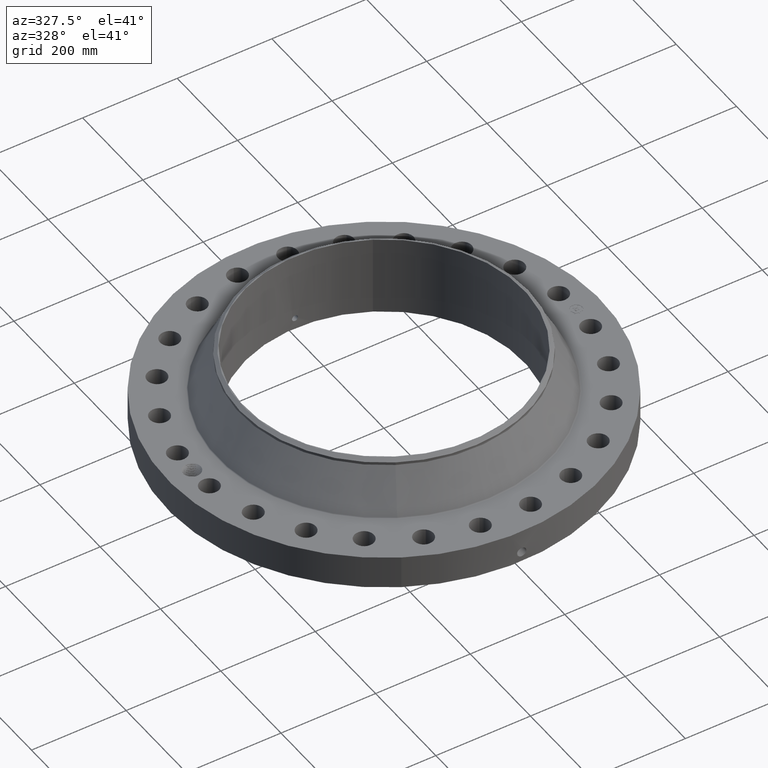
[diagram: clean part render]
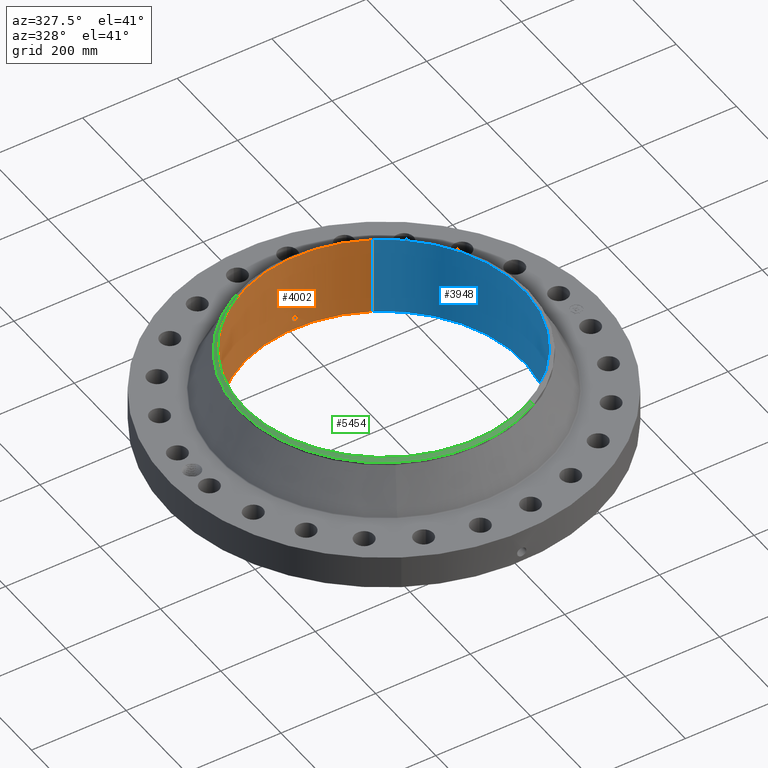
[diagram: same view with three faces highlighted in distinct colors, each labeled with its STEP entity id]
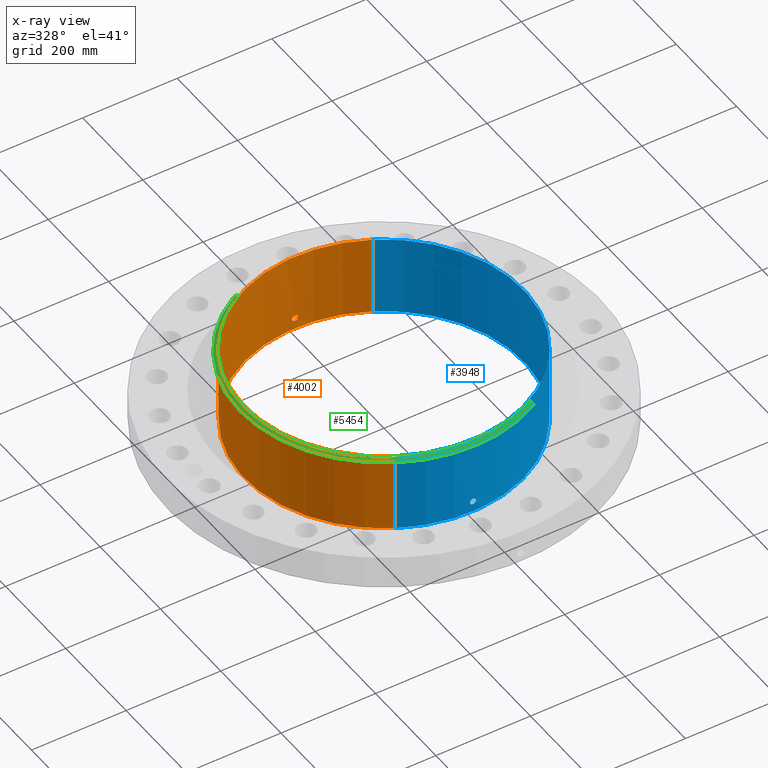
[diagram: x-ray of the same camera — body ghosted, the three highlighted faces saturated]
A machine part, auxiliary view with three faces highlighted in distinct colors.
The next image is the same camera in x-ray (body ghosted, the three faces saturated) — at least one of them is partly hidden behind the body in this view.
Their STEP definitions:

[orange] entity #4002 — the highlighted cylindrical surface (partial cylindrical patch) has radius 295.275 mm, axis along (0, 0, -1).
#3145=AXIS2_PLACEMENT_3D('Circle Axis2P3D',#3143,#3144,$) ;
#3879=AXIS2_PLACEMENT_3D('Cylinder Axis2P3D',#3876,#3877,#3878) ;
#3951=AXIS2_PLACEMENT_3D('Circle Axis2P3D',#3949,#3950,$) ;
#3138=CARTESIAN_POINT('Vertex',(5.5733218863,10.201897282,-7.38516859215E-014)) ;
#3140=CARTESIAN_POINT('Vertex',(-5.5733218863,-10.201897282,-7.38516859215E-014)) ;
#3143=CARTESIAN_POINT('Axis2P3D Location',(0.,0.,0.)) ;
#3876=CARTESIAN_POINT('Axis2P3D Location',(0.,0.,3.34000000001)) ;
#3885=CARTESIAN_POINT('Vertex',(5.5733218863,10.201897282,6.68000000003)) ;
#3887=CARTESIAN_POINT('Vertex',(-5.5733218863,-10.201897282,6.68000000003)) ;
#3890=CARTESIAN_POINT('Line Origine',(5.5733218863,10.201897282,3.34000000001)) ;
#3895=CARTESIAN_POINT('Line Origine',(-5.5733218863,-10.201897282,3.34000000001)) ;
#3949=CARTESIAN_POINT('Axis2P3D Location',(0.,0.,6.68000000003)) ;
#3961=CARTESIAN_POINT('Control Point',(0.219395640473,11.6229295169,1.05985638466)) ;
#3962=CARTESIAN_POINT('Control Point',(0.194442690224,11.6234005314,1.10553245371)) ;
#3963=CARTESIAN_POINT('Control Point',(0.157603809336,11.6240289186,1.14471350048)) ;
#3964=CARTESIAN_POINT('Control Point',(0.111104237674,11.624640089,1.17324467079)) ;
#3965=CARTESIAN_POINT('Control Point',(0.0336681244738,11.6251263373,1.19588334378)) ;
#3966=CARTESIAN_POINT('Control Point',(-0.0446771706209,11.6249582664,1.18805553725)) ;
#3967=CARTESIAN_POINT('Control Point',(-0.070308650011,11.624827795,1.18204182908)) ;
#3968=CARTESIAN_POINT('Control Point',(-0.143966920729,11.6242512714,1.15420586264)) ;
#3969=CARTESIAN_POINT('Control Point',(-0.203255914399,11.6233103135,1.0994840991)) ;
#3970=CARTESIAN_POINT('Control Point',(-0.23221869848,11.6226932693,1.05323980766)) ;
#3971=CARTESIAN_POINT('Control Point',(-0.255842048657,11.6221861779,0.975095075017)) ;
#3972=CARTESIAN_POINT('Control Point',(-0.248280051566,11.622348369,0.895735509005)) ;
#3973=CARTESIAN_POINT('Control Point',(-0.242046339881,11.6224840063,0.869177390131)) ;
#3974=CARTESIAN_POINT('Control Point',(-0.23231379708,11.6226856724,0.843790142408)) ;
#3975=CARTESIAN_POINT('Control Point',(-0.219395640473,11.6229295169,0.820143615352)) ;
#3976=CARTESIAN_POINT('Vertex',(0.219395640473,11.6229295169,1.05985638466)) ;
#3978=CARTESIAN_POINT('Vertex',(-0.219395640473,11.6229295169,0.820143615352)) ;
#3982=CARTESIAN_POINT('Control Point',(-0.219395640473,11.6229295169,0.820143615352)) ;
#3983=CARTESIAN_POINT('Control Point',(-0.194442690218,11.6234005314,0.77446754629)) ;
#3984=CARTESIAN_POINT('Control Point',(-0.157603809319,11.6240289186,0.73528649951)) ;
#3985=CARTESIAN_POINT('Control Point',(-0.111104237694,11.624640089,0.706755329219)) ;
#3986=CARTESIAN_POINT('Control Point',(-0.0336681244899,11.6251263373,0.684116656225)) ;
#3987=CARTESIAN_POINT('Control Point',(0.0446771706078,11.6249582664,0.691944462758)) ;
#3988=CARTESIAN_POINT('Control Point',(0.070308650032,11.624827795,0.69795817093)) ;
#3989=CARTESIAN_POINT('Control Point',(0.143966920754,11.6242512714,0.725794137385)) ;
#3990=CARTESIAN_POINT('Control Point',(0.203255914426,11.6233103135,0.78051590093)) ;
#3991=CARTESIAN_POINT('Control Point',(0.232218698473,11.6226932693,0.826760192318)) ;
#3992=CARTESIAN_POINT('Control Point',(0.25584204863,11.6221861779,0.904904924883)) ;
#3993=CARTESIAN_POINT('Control Point',(0.248280051583,11.622348369,0.984264490811)) ;
#3994=CARTESIAN_POINT('Control Point',(0.24204633981,11.6224840063,1.01082261006)) ;
#3995=CARTESIAN_POINT('Control Point',(0.232313797033,11.6226856724,1.03620985769)) ;
#3996=CARTESIAN_POINT('Control Point',(0.219395640473,11.6229295169,1.05985638466)) ;
#3144=DIRECTION('Axis2P3D Direction',(0.,0.,-0.0393700787402)) ;
#3877=DIRECTION('Axis2P3D Direction',(0.,0.,-0.0393700787402)) ;
#3878=DIRECTION('Axis2P3D XDirection',(-0.0188750212049,-0.0345504945626,0.)) ;
#3891=DIRECTION('Vector Direction',(0.,0.,-0.0393700787402)) ;
#3896=DIRECTION('Vector Direction',(0.,0.,-0.0393700787402)) ;
#3950=DIRECTION('Axis2P3D Direction',(0.,0.,-0.0393700787402)) ;
#3892=VECTOR('Line Direction',#3891,0.0393700787402) ;
#3897=VECTOR('Line Direction',#3896,0.0393700787402) ;
#3955=ORIENTED_EDGE('',*,*,#3953,.F.) ;
#3956=ORIENTED_EDGE('',*,*,#3899,.T.) ;
#3957=ORIENTED_EDGE('',*,*,#3147,.T.) ;
#3958=ORIENTED_EDGE('',*,*,#3894,.F.) ;
#3999=ORIENTED_EDGE('',*,*,#3980,.F.) ;
#4000=ORIENTED_EDGE('',*,*,#3997,.F.) ;
#4001=FACE_BOUND('',#3998,.T.) ;
#4002=ADVANCED_FACE('PartBody',(#3959,#4001),#3880,.F.) ;
#3960=B_SPLINE_CURVE_WITH_KNOTS('',5,(#3961,#3962,#3963,#3964,#3965,#3966,#3967,#3968,#3969,#3970,#3971,#3972,#3973,#3974,#3975),.UNSPECIFIED.,.F.,.U.,(6,3,3,3,6),(0.,9.34839894262,14.0230211608,23.3730687652,28.2127402411),.UNSPECIFIED.) ;
#3981=B_SPLINE_CURVE_WITH_KNOTS('',5,(#3982,#3983,#3984,#3985,#3986,#3987,#3988,#3989,#3990,#3991,#3992,#3993,#3994,#3995,#3996),.UNSPECIFIED.,.F.,.U.,(6,3,3,3,6),(0.,9.34839894479,14.0230211614,23.3730687686,28.212740227),.UNSPECIFIED.) ;
#3146=CIRCLE('generated circle',#3145,11.625) ;
#3952=CIRCLE('generated circle',#3951,11.625) ;
#3880=CYLINDRICAL_SURFACE('generated cylinder',#3879,11.625) ;
#3147=EDGE_CURVE('',#3141,#3139,#3146,.T.) ;
#3894=EDGE_CURVE('',#3886,#3139,#3893,.T.) ;
#3899=EDGE_CURVE('',#3888,#3141,#3898,.T.) ;
#3953=EDGE_CURVE('',#3888,#3886,#3952,.T.) ;
#3980=EDGE_CURVE('',#3977,#3979,#3960,.T.) ;
#3997=EDGE_CURVE('',#3979,#3977,#3981,.T.) ;
#3954=EDGE_LOOP('',(#3955,#3956,#3957,#3958)) ;
#3998=EDGE_LOOP('',(#3999,#4000)) ;
#3959=FACE_OUTER_BOUND('',#3954,.T.) ;
#3893=LINE('Line',#3890,#3892) ;
#3898=LINE('Line',#3895,#3897) ;
#3139=VERTEX_POINT('',#3138) ;
#3141=VERTEX_POINT('',#3140) ;
#3886=VERTEX_POINT('',#3885) ;
#3888=VERTEX_POINT('',#3887) ;
#3977=VERTEX_POINT('',#3976) ;
#3979=VERTEX_POINT('',#3978) ;

[blue] entity #3948 — the highlighted cylindrical surface (partial cylindrical patch) has radius 295.275 mm, axis along (0, 0, -1).
#3136=AXIS2_PLACEMENT_3D('Circle Axis2P3D',#3134,#3135,$) ;
#3879=AXIS2_PLACEMENT_3D('Cylinder Axis2P3D',#3876,#3877,#3878) ;
#3883=AXIS2_PLACEMENT_3D('Circle Axis2P3D',#3881,#3882,$) ;
#3134=CARTESIAN_POINT('Axis2P3D Location',(0.,0.,0.)) ;
#3138=CARTESIAN_POINT('Vertex',(5.5733218863,10.201897282,-7.38516859215E-014)) ;
#3140=CARTESIAN_POINT('Vertex',(-5.5733218863,-10.201897282,-7.38516859215E-014)) ;
#3876=CARTESIAN_POINT('Axis2P3D Location',(0.,0.,3.34000000001)) ;
#3881=CARTESIAN_POINT('Axis2P3D Location',(0.,0.,6.68000000003)) ;
#3885=CARTESIAN_POINT('Vertex',(5.5733218863,10.201897282,6.68000000003)) ;
#3887=CARTESIAN_POINT('Vertex',(-5.5733218863,-10.201897282,6.68000000003)) ;
#3890=CARTESIAN_POINT('Line Origine',(5.5733218863,10.201897282,3.34000000001)) ;
#3895=CARTESIAN_POINT('Line Origine',(-5.5733218863,-10.201897282,3.34000000001)) ;
#3907=CARTESIAN_POINT('Control Point',(0.219395640473,-11.6229295169,0.820143615352)) ;
#3908=CARTESIAN_POINT('Control Point',(0.194442690208,-11.6234005314,0.77446754627)) ;
#3909=CARTESIAN_POINT('Control Point',(0.157603809287,-11.6240289186,0.735286499476)) ;
#3910=CARTESIAN_POINT('Control Point',(0.111104237735,-11.624640089,0.70675532923)) ;
#3911=CARTESIAN_POINT('Control Point',(0.0336681245101,-11.6251263373,0.684116656223)) ;
#3912=CARTESIAN_POINT('Control Point',(-0.0446771706087,-11.6249582664,0.691944462758)) ;
#3913=CARTESIAN_POINT('Control Point',(-0.0703086500379,-11.624827795,0.697958170932)) ;
#3914=CARTESIAN_POINT('Control Point',(-0.143966920625,-11.6242512714,0.725794137338)) ;
#3915=CARTESIAN_POINT('Control Point',(-0.203255914213,-11.6233103135,0.780515900736)) ;
#3916=CARTESIAN_POINT('Control Point',(-0.232218698559,-11.6226932693,0.826760192601)) ;
#3917=CARTESIAN_POINT('Control Point',(-0.255842048639,-11.6221861779,0.9049049251)) ;
#3918=CARTESIAN_POINT('Control Point',(-0.248280051569,-11.622348369,0.984264490959)) ;
#3919=CARTESIAN_POINT('Control Point',(-0.242046339862,-11.6224840063,1.01082260992)) ;
#3920=CARTESIAN_POINT('Control Point',(-0.232313797068,-11.6226856724,1.03620985762)) ;
#3921=CARTESIAN_POINT('Control Point',(-0.219395640473,-11.6229295169,1.05985638466)) ;
#3922=CARTESIAN_POINT('Vertex',(0.219395640473,-11.6229295169,0.820143615352)) ;
#3924=CARTESIAN_POINT('Vertex',(-0.219395640473,-11.6229295169,1.05985638466)) ;
#3928=CARTESIAN_POINT('Control Point',(-0.219395640473,-11.6229295169,1.05985638466)) ;
#3929=CARTESIAN_POINT('Control Point',(-0.194442690217,-11.6234005314,1.10553245372)) ;
#3930=CARTESIAN_POINT('Control Point',(-0.157603809315,-11.6240289186,1.1447135005)) ;
#3931=CARTESIAN_POINT('Control Point',(-0.111104237707,-11.624640089,1.17324467078)) ;
#3932=CARTESIAN_POINT('Control Point',(-0.0336681244976,-11.6251263373,1.19588334378)) ;
#3933=CARTESIAN_POINT('Control Point',(0.044677170607,-11.6249582664,1.18805553725)) ;
#3934=CARTESIAN_POINT('Control Point',(0.0703086500152,-11.624827795,1.18204182908)) ;
#3935=CARTESIAN_POINT('Control Point',(0.143966920726,-11.6242512714,1.15420586264)) ;
#3936=CARTESIAN_POINT('Control Point',(0.203255914394,-11.6233103135,1.09948409911)) ;
#3937=CARTESIAN_POINT('Control Point',(0.232218698479,-11.6226932693,1.05323980766)) ;
#3938=CARTESIAN_POINT('Control Point',(0.255842048642,-11.6221861779,0.975095075069)) ;
#3939=CARTESIAN_POINT('Control Point',(0.248280051576,-11.622348369,0.895735509108)) ;
#3940=CARTESIAN_POINT('Control Point',(0.242046339846,-11.6224840063,0.869177390039)) ;
#3941=CARTESIAN_POINT('Control Point',(0.232313797057,-11.6226856724,0.843790142365)) ;
#3942=CARTESIAN_POINT('Control Point',(0.219395640473,-11.6229295169,0.820143615352)) ;
#3135=DIRECTION('Axis2P3D Direction',(0.,0.,-0.0393700787402)) ;
#3877=DIRECTION('Axis2P3D Direction',(0.,0.,-0.0393700787402)) ;
#3878=DIRECTION('Axis2P3D XDirection',(-0.0188750212049,-0.0345504945626,0.)) ;
#3882=DIRECTION('Axis2P3D Direction',(0.,0.,-0.0393700787402)) ;
#3891=DIRECTION('Vector Direction',(0.,0.,-0.0393700787402)) ;
#3896=DIRECTION('Vector Direction',(0.,0.,-0.0393700787402)) ;
#3892=VECTOR('Line Direction',#3891,0.0393700787402) ;
#3897=VECTOR('Line Direction',#3896,0.0393700787402) ;
#3901=ORIENTED_EDGE('',*,*,#3889,.F.) ;
#3902=ORIENTED_EDGE('',*,*,#3894,.T.) ;
#3903=ORIENTED_EDGE('',*,*,#3142,.T.) ;
#3904=ORIENTED_EDGE('',*,*,#3899,.F.) ;
#3945=ORIENTED_EDGE('',*,*,#3926,.F.) ;
#3946=ORIENTED_EDGE('',*,*,#3943,.F.) ;
#3947=FACE_BOUND('',#3944,.T.) ;
#3948=ADVANCED_FACE('PartBody',(#3905,#3947),#3880,.F.) ;
#3906=B_SPLINE_CURVE_WITH_KNOTS('',5,(#3907,#3908,#3909,#3910,#3911,#3912,#3913,#3914,#3915,#3916,#3917,#3918,#3919,#3920,#3921),.UNSPECIFIED.,.F.,.U.,(6,3,3,3,6),(0.,9.34839894884,14.0230211652,23.373068747,28.2127402183),.UNSPECIFIED.) ;
#3927=B_SPLINE_CURVE_WITH_KNOTS('',5,(#3928,#3929,#3930,#3931,#3932,#3933,#3934,#3935,#3936,#3937,#3938,#3939,#3940,#3941,#3942),.UNSPECIFIED.,.F.,.U.,(6,3,3,3,6),(0.,9.34839894521,14.0230211626,23.3730687666,28.2127402338),.UNSPECIFIED.) ;
#3137=CIRCLE('generated circle',#3136,11.625) ;
#3884=CIRCLE('generated circle',#3883,11.625) ;
#3880=CYLINDRICAL_SURFACE('generated cylinder',#3879,11.625) ;
#3142=EDGE_CURVE('',#3139,#3141,#3137,.T.) ;
#3889=EDGE_CURVE('',#3886,#3888,#3884,.T.) ;
#3894=EDGE_CURVE('',#3886,#3139,#3893,.T.) ;
#3899=EDGE_CURVE('',#3888,#3141,#3898,.T.) ;
#3926=EDGE_CURVE('',#3923,#3925,#3906,.T.) ;
#3943=EDGE_CURVE('',#3925,#3923,#3927,.T.) ;
#3900=EDGE_LOOP('',(#3901,#3902,#3903,#3904)) ;
#3944=EDGE_LOOP('',(#3945,#3946)) ;
#3905=FACE_OUTER_BOUND('',#3900,.T.) ;
#3893=LINE('Line',#3890,#3892) ;
#3898=LINE('Line',#3895,#3897) ;
#3139=VERTEX_POINT('',#3138) ;
#3141=VERTEX_POINT('',#3140) ;
#3886=VERTEX_POINT('',#3885) ;
#3888=VERTEX_POINT('',#3887) ;
#3923=VERTEX_POINT('',#3922) ;
#3925=VERTEX_POINT('',#3924) ;

[green] entity #5454 — the highlighted conical surface has half-angle 52.5 deg.
#4259=AXIS2_PLACEMENT_3D('Circle Axis2P3D',#4257,#4258,$) ;
#4272=AXIS2_PLACEMENT_3D('Circle Axis2P3D',#4270,#4271,$) ;
#5074=AXIS2_PLACEMENT_3D('Circle Axis2P3D',#5072,#5073,$) ;
#5427=AXIS2_PLACEMENT_3D('Cone Axis2P3D',#5424,#5425,#5426) ;
#4240=CARTESIAN_POINT('Vertex',(-5.75310646327,-10.5309907427,6.45267182741)) ;
#4254=CARTESIAN_POINT('Vertex',(5.75310646327,-10.5309907427,6.45267182741)) ;
#4257=CARTESIAN_POINT('Axis2P3D Location',(0.,0.,6.45267182741)) ;
#4270=CARTESIAN_POINT('Axis2P3D Location',(0.,0.,6.45267182741)) ;
#4274=CARTESIAN_POINT('Vertex',(-5.75310646327,10.5309907427,6.45267182741)) ;
#5067=CARTESIAN_POINT('Vertex',(5.61107192871,-10.2709982711,6.68000000003)) ;
#5069=CARTESIAN_POINT('Vertex',(-5.61107192871,10.2709982711,6.68000000003)) ;
#5072=CARTESIAN_POINT('Axis2P3D Location',(0.,0.,6.68000000003)) ;
#5424=CARTESIAN_POINT('Axis2P3D Location',(0.,0.,6.68000000003)) ;
#5429=CARTESIAN_POINT('Line Origine',(-5.68208919599,10.4009945069,6.56633591372)) ;
#5434=CARTESIAN_POINT('Line Origine',(5.68208919599,-10.4009945069,6.56633591372)) ;
#4258=DIRECTION('Axis2P3D Direction',(0.,0.,-0.0393700787402)) ;
#4271=DIRECTION('Axis2P3D Direction',(0.,0.,-0.0393700787402)) ;
#5073=DIRECTION('Axis2P3D Direction',(0.,0.,-0.0393700787402)) ;
#5425=DIRECTION('Axis2P3D Direction',(-0.,-0.,-0.0393700787402)) ;
#5426=DIRECTION('Axis2P3D XDirection',(0.0188750212049,-0.0345504945626,0.)) ;
#5430=DIRECTION('Vector Direction',(-0.014974561121,0.02741075027,-0.023966985394)) ;
#5435=DIRECTION('Vector Direction',(0.014974561121,-0.02741075027,-0.023966985394)) ;
#5431=VECTOR('Line Direction',#5430,0.0393700787402) ;
#5436=VECTOR('Line Direction',#5435,0.0393700787402) ;
#5448=ORIENTED_EDGE('',*,*,#5438,.F.) ;
#5449=ORIENTED_EDGE('',*,*,#5076,.F.) ;
#5450=ORIENTED_EDGE('',*,*,#5433,.T.) ;
#5451=ORIENTED_EDGE('',*,*,#4276,.T.) ;
#5452=ORIENTED_EDGE('',*,*,#4261,.F.) ;
#5454=ADVANCED_FACE('PartBody',(#5453),#5428,.T.) ;
#4260=CIRCLE('generated circle',#4259,12.) ;
#4273=CIRCLE('generated circle',#4272,12.) ;
#5075=CIRCLE('generated circle',#5074,11.7037401575) ;
#5428=CONICAL_SURFACE('Cone',#5427,11.7037401575,0.916297857297) ;
#4261=EDGE_CURVE('',#4255,#4241,#4260,.T.) ;
#4276=EDGE_CURVE('',#4275,#4241,#4273,.F.) ;
#5076=EDGE_CURVE('',#5070,#5068,#5075,.F.) ;
#5433=EDGE_CURVE('',#5070,#4275,#5432,.T.) ;
#5438=EDGE_CURVE('',#5068,#4255,#5437,.T.) ;
#5447=EDGE_LOOP('',(#5448,#5449,#5450,#5451,#5452)) ;
#5453=FACE_OUTER_BOUND('',#5447,.T.) ;
#5432=LINE('Line',#5429,#5431) ;
#5437=LINE('Line',#5434,#5436) ;
#4241=VERTEX_POINT('',#4240) ;
#4255=VERTEX_POINT('',#4254) ;
#4275=VERTEX_POINT('',#4274) ;
#5068=VERTEX_POINT('',#5067) ;
#5070=VERTEX_POINT('',#5069) ;